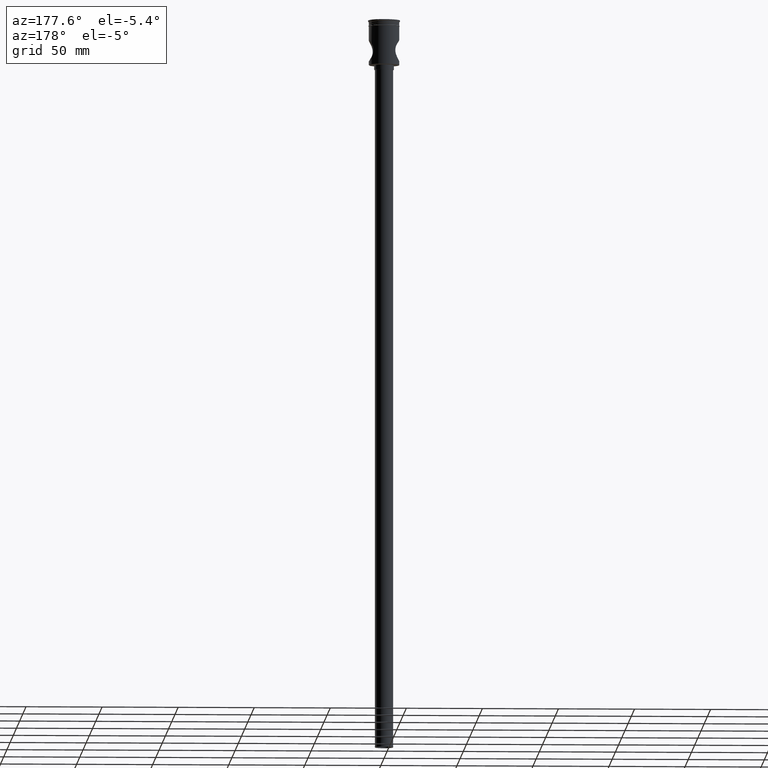
[diagram: clean part render]
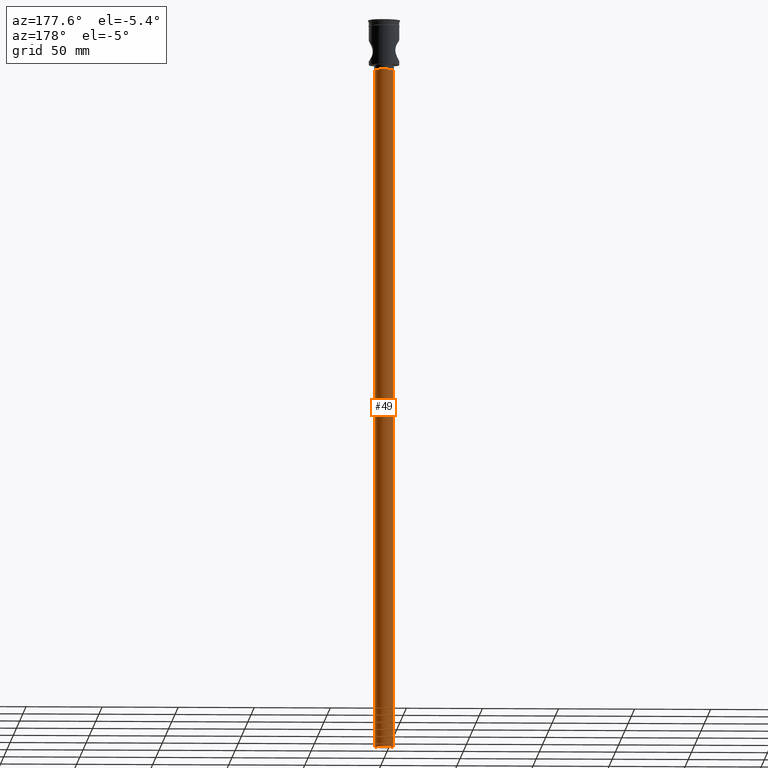
[diagram: same view with one face highlighted and labeled with its STEP entity id]
A machine part, auxiliary view. The second image highlights one B-rep face of the part: STEP entity #49.
In plain terms, the highlighted cylindrical surface (edge-blend (fillet) strip) has radius 6 mm, axis along (-0, -0, 1).
Its self-contained STEP definition (entity closure, byte-faithful):
#49 = ADVANCED_FACE ( 'NONE', ( #1006 ), #1356, .T. ) ;
#56 = ORIENTED_EDGE ( 'NONE', *, *, #826, .T. ) ;
#62 = CARTESIAN_POINT ( 'NONE',  ( 0.000000000000000000, 0.000000000000000000, -479.5000000000000568 ) ) ;
#91 = VERTEX_POINT ( 'NONE', #792 ) ;
#94 = DIRECTION ( 'NONE',  ( -0.000000000000000000, -0.000000000000000000, 1.000000000000000000 ) ) ;
#133 = EDGE_CURVE ( 'NONE', #316, #1167, #556, .T. ) ;
#173 = EDGE_CURVE ( 'NONE', #91, #1148, #383, .T. ) ;
#264 = CARTESIAN_POINT ( 'NONE',  ( 0.000000000000000000, 0.000000000000000000, -32.50000000000000000 ) ) ;
#283 = AXIS2_PLACEMENT_3D ( 'NONE', #379, #829, #1315 ) ;
#316 = VERTEX_POINT ( 'NONE', #655 ) ;
#318 = EDGE_LOOP ( 'NONE', ( #953, #56, #708, #633 ) ) ;
#379 = CARTESIAN_POINT ( 'NONE',  ( 0.000000000000000000, 0.000000000000000000, -479.5000000000000568 ) ) ;
#383 = CIRCLE ( 'NONE', #1159, 6.000000000000000888 ) ;
#426 = CARTESIAN_POINT ( 'NONE',  ( 6.000000000000000888, 0.000000000000000000, -479.5000000000000568 ) ) ;
#436 = CARTESIAN_POINT ( 'NONE',  ( -6.000000000000000888, 7.347880794884120722E-16, -479.5000000000000568 ) ) ;
#556 = CIRCLE ( 'NONE', #283, 6.000000000000000888 ) ;
#596 = DIRECTION ( 'NONE',  ( 0.000000000000000000, 0.000000000000000000, -1.000000000000000000 ) ) ;
#633 = ORIENTED_EDGE ( 'NONE', *, *, #939, .F. ) ;
#655 = CARTESIAN_POINT ( 'NONE',  ( -6.000000000000000888, 7.347880794884120722E-16, -479.5000000000000568 ) ) ;
#689 = VECTOR ( 'NONE', #1270, 1000.000000000000000 ) ;
#708 = ORIENTED_EDGE ( 'NONE', *, *, #173, .T. ) ;
#792 = CARTESIAN_POINT ( 'NONE',  ( -6.000000000000000888, 7.347880794884120722E-16, -32.50000000000000000 ) ) ;
#826 = EDGE_CURVE ( 'NONE', #316, #91, #1362, .T. ) ;
#829 = DIRECTION ( 'NONE',  ( 0.000000000000000000, 0.000000000000000000, -1.000000000000000000 ) ) ;
#939 = EDGE_CURVE ( 'NONE', #1167, #1148, #1019, .T. ) ;
#953 = ORIENTED_EDGE ( 'NONE', *, *, #133, .F. ) ;
#989 = CARTESIAN_POINT ( 'NONE',  ( 6.000000000000000888, 0.000000000000000000, -32.50000000000000000 ) ) ;
#1006 = FACE_OUTER_BOUND ( 'NONE', #318, .T. ) ;
#1019 = LINE ( 'NONE', #426, #1328 ) ;
#1057 = AXIS2_PLACEMENT_3D ( 'NONE', #62, #1371, #1489 ) ;
#1148 = VERTEX_POINT ( 'NONE', #989 ) ;
#1159 = AXIS2_PLACEMENT_3D ( 'NONE', #264, #596, #1217 ) ;
#1167 = VERTEX_POINT ( 'NONE', #1436 ) ;
#1217 = DIRECTION ( 'NONE',  ( -1.000000000000000000, 0.000000000000000000, 0.000000000000000000 ) ) ;
#1270 = DIRECTION ( 'NONE',  ( -0.000000000000000000, -0.000000000000000000, 1.000000000000000000 ) ) ;
#1315 = DIRECTION ( 'NONE',  ( -1.000000000000000000, 0.000000000000000000, 0.000000000000000000 ) ) ;
#1328 = VECTOR ( 'NONE', #94, 1000.000000000000000 ) ;
#1356 = CYLINDRICAL_SURFACE ( 'NONE', #1057, 6.000000000000000888 ) ;
#1362 = LINE ( 'NONE', #436, #689 ) ;
#1371 = DIRECTION ( 'NONE',  ( -0.000000000000000000, -0.000000000000000000, 1.000000000000000000 ) ) ;
#1436 = CARTESIAN_POINT ( 'NONE',  ( 6.000000000000000888, 0.000000000000000000, -479.5000000000000568 ) ) ;
#1489 = DIRECTION ( 'NONE',  ( 1.000000000000000000, 0.000000000000000000, 0.000000000000000000 ) ) ;